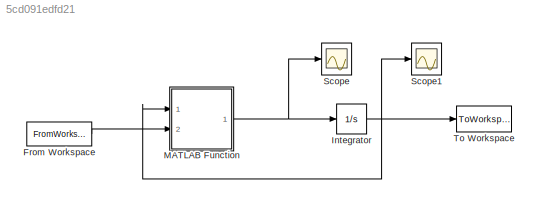
MODEL slx_5cd091edfd21
KIND model
CONFIG AbsTol = auto
CONFIG FixedStep = auto
CONFIG MaxStep = auto
CONFIG MinStep = auto
CONFIG RelTol = 1e-3
CONFIG SampleTimeConstraint = Unconstrained
CONFIG Solver = VariableStepAuto
CONFIG SolverMode = Auto
CONFIG SolverName = VariableStepAuto
CONFIG StartTime = 0.0
CONFIG StopTime = 10.0
BLOCK [FromWorkspace] From Workspace
  SampleTime = 0
  VariableName = simin
  ZeroCross = on
BLOCK [Integrator] Integrator
  InitialCondition = [x_w(1); phi(1); v_w(1); omega(1);]
  Ports = [1, 1]
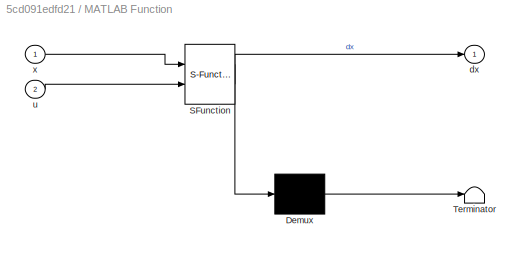
BLOCK [SubSystem] MATLAB Function
  ErrorFcn = Stateflow.Translate.translate
  PermitHierarchicalResolution = ExplicitOnly
  Ports = [2, 1]
  RequestExecContextInheritance = off
  SFBlockType = MATLAB Function
  TreatAsAtomicUnit = on
  Variant = off
BLOCK [Demux] MATLAB Function/ Demux 
  Outputs = 1
  Ports = [1, 1]
BLOCK [S-Function] MATLAB Function/ SFunction 
  EnableBusSupport = on
  FunctionName = sf_sfun
  Parameters = V,g,k_1,l,m_s,m_w
  PortCounts = [2 2]
  Ports = [2, 2]
  SFunctionDeploymentMode = off
  Tag = Stateflow S-Function task2e_model_2015b 1
BLOCK [Terminator] MATLAB Function/ Terminator 
BLOCK [Outport] MATLAB Function/dx
  IconDisplay = Port number
BLOCK [Inport] MATLAB Function/u
  IconDisplay = Port number
  Port = 2
BLOCK [Inport] MATLAB Function/x
  IconDisplay = Port number
BLOCK [Scope] Scope
  Ports = [1]
  ScopeSpecificationString = C++SS(StrPVP('Open','off'),StrPVP('TimeRange','auto'),StrPVP('TickLabels','OneTimeTick'),StrPVP('ShowLegends','off'),StrPVP('LimitDataPoints','off'),StrPVP('MaxDataPoints','5000'),StrPVP('SaveToWorkspace','off'),StrPVP('SaveName','ScopeData'),StrPVP('YMin','-10'),StrPVP('YMax','10'),StrPVP('BlockParamSampleInput','off'),StrPVP('BlockParamSampleTime','-1'),StrPVP('ZoomMode','on'),StrPVP('Grid','on'...<+601ch>
BLOCK [Scope] Scope1
  Ports = [1]
  ScopeSpecificationString = Simulink.scopes.TimeScopeBlockCfg('CurrentConfiguration', extmgr.ConfigurationSet(extmgr.Configuration('Core','General UI',true,'FigureColor',[0.156862745098039 0.156862745098039 0.156862745098039]),extmgr.Configuration('Core','Source UI',true),extmgr.Configuration('Sources','WiredSimulink',true,'DataLoggingVariableName','ScopeData1','DataLoggingSaveFormat','StructureWithTime','DataLoggingDecimati...<+2839ch>
BLOCK [ToWorkspace] To Workspace
  FixptAsFi = on
  MaxDataPoints = inf
  Ports = [1]
  SampleTime = -1
  Save2DSignal = 3-D array (concatenate along third dimension)
  SaveFormat = Structure With Time
  VariableName = x_sim
LINE From Workspace:1 -> MATLAB Function:2
NET Integrator:1 -> MATLAB Function:1, Scope1:1, To Workspace:1
NET MATLAB Function:1 -> Integrator:1, Scope:1
note: NET lines group one-source signal fan-out (src -> all destinations, sorted); 1:1 wires keep LINE
CHART MATLAB Function states=1 transitions=1
  STATE_LABEL 'eML_blk_kernel()'
  STATE_LABEL 'SCRIPT:\nfunction dx = fcn(x,g,l,u, m_s, m_w, V, k_1)\ndx = [0;0;0;0];\n\ndx(1) = x(3);\ndx(2) = x(4);\ndx(3) = (1/(m_w+m_s*(1-cos(x(2))^2)))*(V*u - k_1*x(3) + m_s*l*x(4)^2*sin(x(2)) - m_s*g*sin(x(2))*cos(x(2)));\ndx(4) = (1/(l*(1-(m_s/(m_w+m_s))*cos(x(2))^2)))*(g*sin(x(2)) - (cos(x(2))/(m_w+m_s))*(V*u-k_1*x(3)) - ((m_s/(m_w+m_s))*l*x(4)^2)*sin(x(2))*cos(x(2)));'
